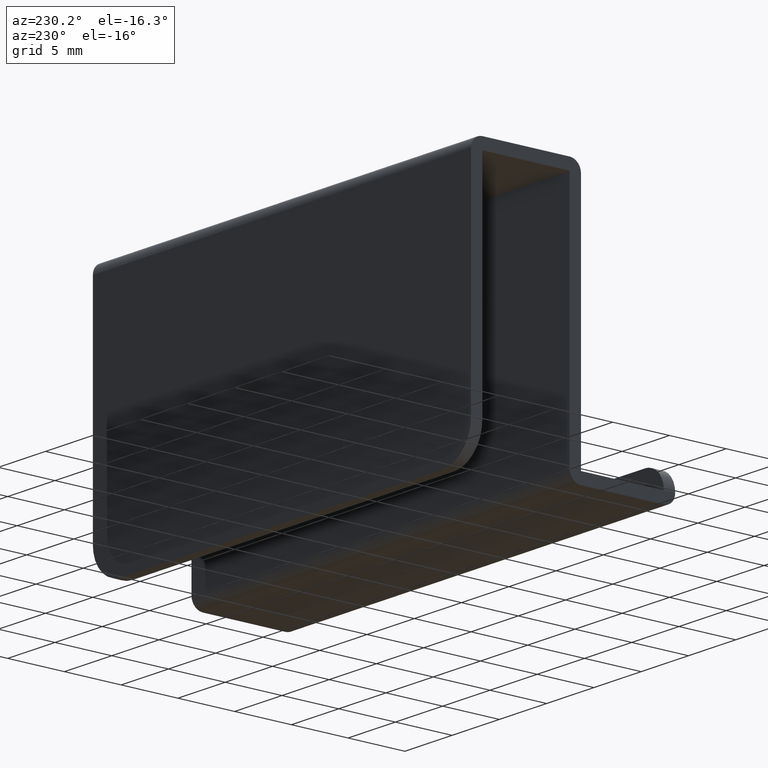
[diagram: clean part render]
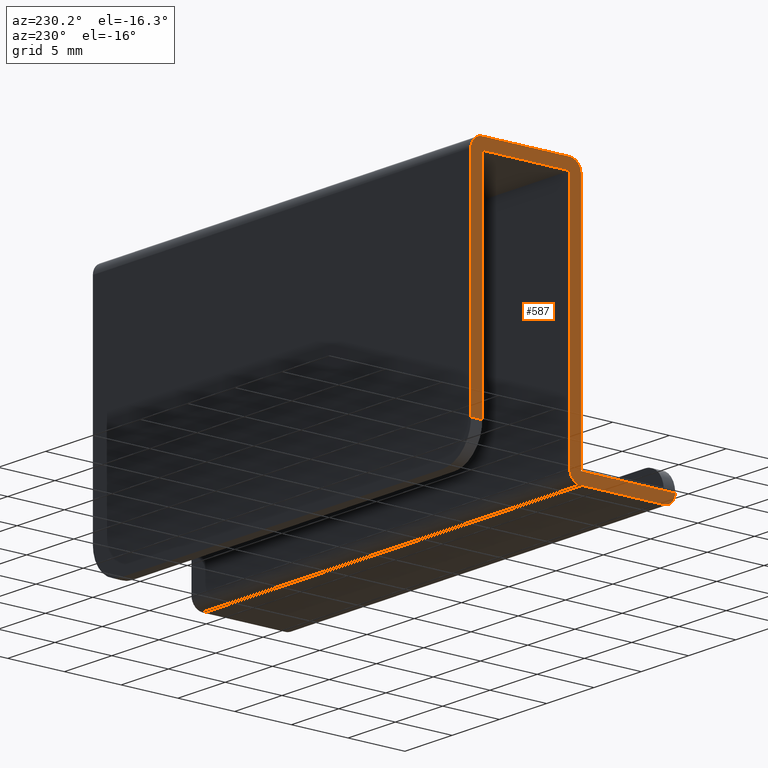
[diagram: same view with one face highlighted and labeled with its STEP entity id]
A machine part, auxiliary view. The second image highlights one B-rep face of the part: STEP entity #587.
In plain terms, the highlighted face is a freeform B-spline surface patch.
Its self-contained STEP definition (entity closure, byte-faithful):
#121=CARTESIAN_POINT('',(-20.0,-17.999999999999751,1.0));
#122=VERTEX_POINT('',#121);
#143=CARTESIAN_POINT('',(-20.0,-16.999999999999751,1.0));
#144=VERTEX_POINT('',#143);
#158=CARTESIAN_POINT('',(-20.0,-17.999999999999751,1.0));
#159=CARTESIAN_POINT('',(-20.0,-16.999999999999751,1.0));
#160=QUASI_UNIFORM_CURVE('',1,(#158,#159),.UNSPECIFIED.,.F.,.U.);
#161=EDGE_CURVE('',#122,#144,#160,.T.);
#197=CARTESIAN_POINT('',(-20.0,0.0,22.0));
#198=VERTEX_POINT('',#197);
#204=CARTESIAN_POINT('',(-20.0,-1.0,23.0));
#205=VERTEX_POINT('',#204);
#206=CARTESIAN_POINT('',(-20.0,-1.0,23.0));
#207=CARTESIAN_POINT('',(-19.999999999999996,0.0,22.999999999999993));
#208=CARTESIAN_POINT('',(-20.0,0.0,22.0));
#216=(BOUNDED_CURVE()B_SPLINE_CURVE(2,(#206,#207,#208),.UNSPECIFIED.,.F.,.U.)CURVE()GEOMETRIC_REPRESENTATION_ITEM()QUASI_UNIFORM_CURVE()RATIONAL_B_SPLINE_CURVE((1.0,0.707106781186548,1.0))REPRESENTATION_ITEM(''));
#217=EDGE_CURVE('',#205,#198,#216,.T.);
#258=CARTESIAN_POINT('',(-20.0,-8.700011999999788,23.0));
#259=VERTEX_POINT('',#258);
#265=CARTESIAN_POINT('',(-20.0,-9.700011999999790,22.0));
#266=VERTEX_POINT('',#265);
#267=CARTESIAN_POINT('',(-20.0,-9.700011999999790,22.0));
#268=CARTESIAN_POINT('',(-19.999999999999996,-9.700011999999790,22.999999999999993));
#269=CARTESIAN_POINT('',(-20.0,-8.700011999999788,23.0));
#277=(BOUNDED_CURVE()B_SPLINE_CURVE(2,(#267,#268,#269),.UNSPECIFIED.,.F.,.U.)CURVE()GEOMETRIC_REPRESENTATION_ITEM()QUASI_UNIFORM_CURVE()RATIONAL_B_SPLINE_CURVE((1.0,0.707106781186548,1.0))REPRESENTATION_ITEM(''));
#278=EDGE_CURVE('',#266,#259,#277,.T.);
#322=CARTESIAN_POINT('',(-20.0,-16.999999999999751,0.0));
#323=VERTEX_POINT('',#322);
#324=CARTESIAN_POINT('',(-20.0,-16.999999999999751,0.0));
#325=CARTESIAN_POINT('',(-19.999999999999996,-17.999999999999751,0.0));
#326=CARTESIAN_POINT('',(-20.0,-17.999999999999751,1.0));
#334=(BOUNDED_CURVE()B_SPLINE_CURVE(2,(#324,#325,#326),.UNSPECIFIED.,.F.,.U.)CURVE()GEOMETRIC_REPRESENTATION_ITEM()QUASI_UNIFORM_CURVE()RATIONAL_B_SPLINE_CURVE((1.0,0.707106781186548,1.0))REPRESENTATION_ITEM(''));
#335=EDGE_CURVE('',#323,#122,#334,.T.);
#376=CARTESIAN_POINT('',(-20.0,-9.700011999999999,0.0));
#377=VERTEX_POINT('',#376);
#383=CARTESIAN_POINT('',(-20.0,-8.700011999999999,1.0));
#384=VERTEX_POINT('',#383);
#385=CARTESIAN_POINT('',(-20.0,-8.700011999999999,1.0));
#386=CARTESIAN_POINT('',(-19.999999999999996,-8.700011999999999,0.0));
#387=CARTESIAN_POINT('',(-20.0,-9.700011999999999,0.0));
#395=(BOUNDED_CURVE()B_SPLINE_CURVE(2,(#385,#386,#387),.UNSPECIFIED.,.F.,.U.)CURVE()GEOMETRIC_REPRESENTATION_ITEM()QUASI_UNIFORM_CURVE()RATIONAL_B_SPLINE_CURVE((1.0,0.707106781186548,1.0))REPRESENTATION_ITEM(''));
#396=EDGE_CURVE('',#384,#377,#395,.T.);
#483=CARTESIAN_POINT('',(-20.0,0.0,3.0));
#484=VERTEX_POINT('',#483);
#505=CARTESIAN_POINT('',(-20.0,-1.0,3.0));
#506=VERTEX_POINT('',#505);
#520=CARTESIAN_POINT('',(-20.0,0.0,3.0));
#521=CARTESIAN_POINT('',(-20.0,-1.0,3.0));
#522=QUASI_UNIFORM_CURVE('',1,(#520,#521),.UNSPECIFIED.,.F.,.U.);
#523=EDGE_CURVE('',#484,#506,#522,.T.);
#528=CARTESIAN_POINT('',(-20.0,-18.899099965112249,24.148849955421539));
#529=CARTESIAN_POINT('',(-20.0,0.899100447910116,24.148849955421539));
#530=CARTESIAN_POINT('',(-20.0,-18.899099965112249,-1.148850572329609));
#531=CARTESIAN_POINT('',(-20.0,0.899100447910116,-1.148850572329609));
#532=B_SPLINE_SURFACE_WITH_KNOTS('',1,1,((#528,#530),(#529,#531)),.UNSPECIFIED.,.F.,.F.,.U.,(2,2),(2,2),(0.0,19.798200413022361),(0.0,25.297700527751150),.UNSPECIFIED.);
#533=ORIENTED_EDGE('',*,*,#335,.T.);
#534=ORIENTED_EDGE('',*,*,#161,.T.);
#535=CARTESIAN_POINT('',(-20.0,-9.700011999999790,1.0));
#536=VERTEX_POINT('',#535);
#537=CARTESIAN_POINT('',(-20.0,-16.999999999999751,1.0));
#538=CARTESIAN_POINT('',(-20.0,-9.700011999999790,1.0));
#539=QUASI_UNIFORM_CURVE('',1,(#537,#538),.UNSPECIFIED.,.F.,.U.);
#540=EDGE_CURVE('',#144,#536,#539,.T.);
#541=ORIENTED_EDGE('',*,*,#540,.T.);
#542=CARTESIAN_POINT('',(-20.0,-9.700011999999790,1.0));
#543=CARTESIAN_POINT('',(-20.0,-9.700011999999790,22.0));
#544=QUASI_UNIFORM_CURVE('',1,(#542,#543),.UNSPECIFIED.,.F.,.U.);
#545=EDGE_CURVE('',#536,#266,#544,.T.);
#546=ORIENTED_EDGE('',*,*,#545,.T.);
#547=ORIENTED_EDGE('',*,*,#278,.T.);
#548=CARTESIAN_POINT('',(-20.0,-8.700011999999788,23.0));
#549=CARTESIAN_POINT('',(-20.0,-1.0,23.0));
#550=QUASI_UNIFORM_CURVE('',1,(#548,#549),.UNSPECIFIED.,.F.,.U.);
#551=EDGE_CURVE('',#259,#205,#550,.T.);
#552=ORIENTED_EDGE('',*,*,#551,.T.);
#553=ORIENTED_EDGE('',*,*,#217,.T.);
#554=CARTESIAN_POINT('',(-20.0,0.0,22.0));
#555=CARTESIAN_POINT('',(-20.0,0.0,3.0));
#556=QUASI_UNIFORM_CURVE('',1,(#554,#555),.UNSPECIFIED.,.F.,.U.);
#557=EDGE_CURVE('',#198,#484,#556,.T.);
#558=ORIENTED_EDGE('',*,*,#557,.T.);
#559=ORIENTED_EDGE('',*,*,#523,.T.);
#560=CARTESIAN_POINT('',(-20.0,-1.0,22.0));
#561=VERTEX_POINT('',#560);
#562=CARTESIAN_POINT('',(-20.0,-1.0,3.0));
#563=CARTESIAN_POINT('',(-20.0,-1.0,22.0));
#564=QUASI_UNIFORM_CURVE('',1,(#562,#563),.UNSPECIFIED.,.F.,.U.);
#565=EDGE_CURVE('',#506,#561,#564,.T.);
#566=ORIENTED_EDGE('',*,*,#565,.T.);
#567=CARTESIAN_POINT('',(-20.0,-8.700011999999999,22.0));
#568=VERTEX_POINT('',#567);
#569=CARTESIAN_POINT('',(-20.0,-1.0,22.0));
#570=CARTESIAN_POINT('',(-20.0,-8.700011999999999,22.0));
#571=QUASI_UNIFORM_CURVE('',1,(#569,#570),.UNSPECIFIED.,.F.,.U.);
#572=EDGE_CURVE('',#561,#568,#571,.T.);
#573=ORIENTED_EDGE('',*,*,#572,.T.);
#574=CARTESIAN_POINT('',(-20.0,-8.700011999999999,22.0));
#575=CARTESIAN_POINT('',(-20.0,-8.700011999999999,1.0));
#576=QUASI_UNIFORM_CURVE('',1,(#574,#575),.UNSPECIFIED.,.F.,.U.);
#577=EDGE_CURVE('',#568,#384,#576,.T.);
#578=ORIENTED_EDGE('',*,*,#577,.T.);
#579=ORIENTED_EDGE('',*,*,#396,.T.);
#580=CARTESIAN_POINT('',(-20.0,-9.700011999999999,0.0));
#581=CARTESIAN_POINT('',(-20.0,-16.999999999999751,0.0));
#582=QUASI_UNIFORM_CURVE('',1,(#580,#581),.UNSPECIFIED.,.F.,.U.);
#583=EDGE_CURVE('',#377,#323,#582,.T.);
#584=ORIENTED_EDGE('',*,*,#583,.T.);
#585=EDGE_LOOP('',(#533,#534,#541,#546,#547,#552,#553,#558,#559,#566,#573,#578,#579,#584));
#586=FACE_OUTER_BOUND('',#585,.T.);
#587=ADVANCED_FACE('',(#586),#532,.T.);